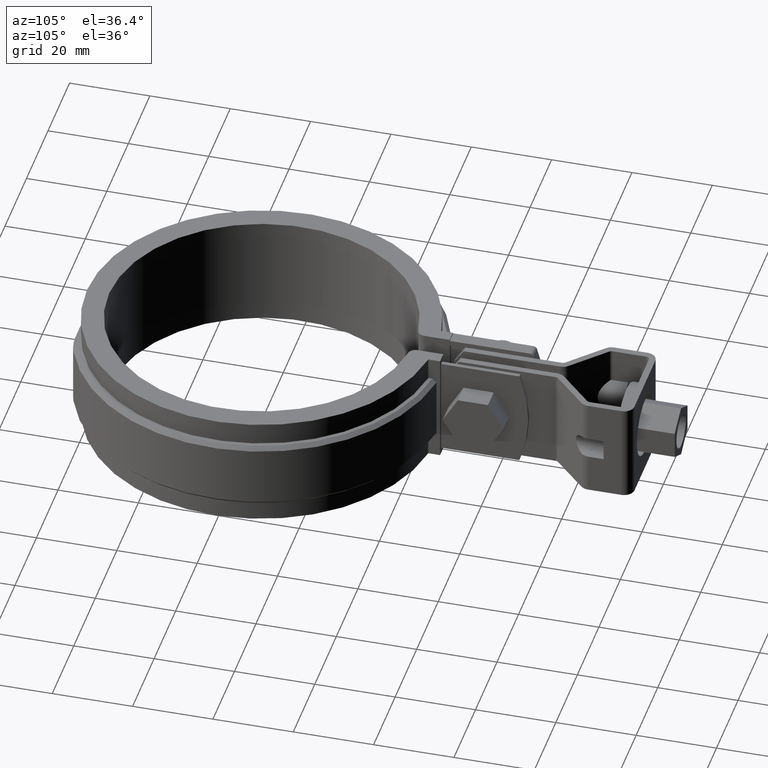
[diagram: clean part render]
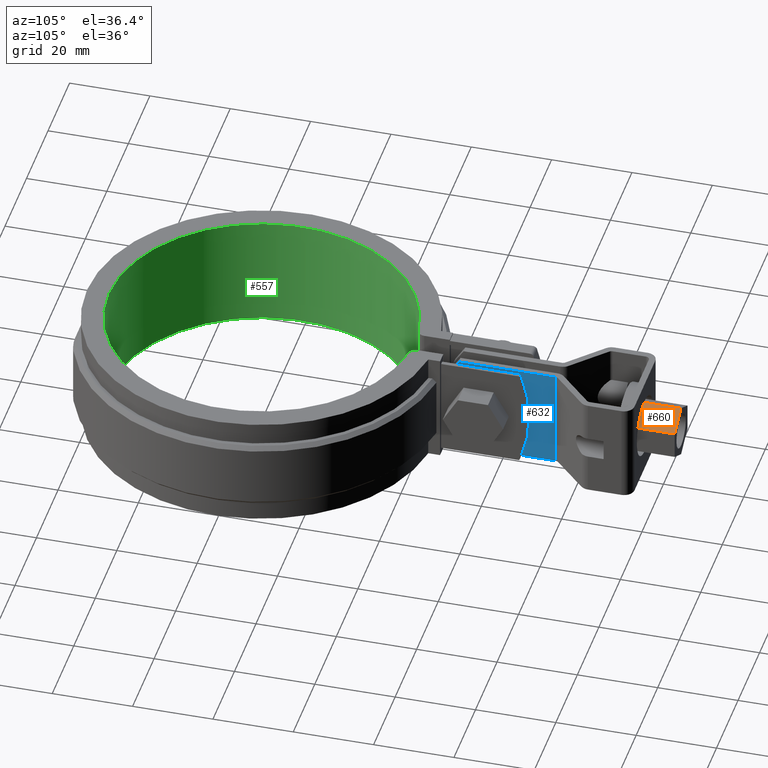
[diagram: same view with three faces highlighted in distinct colors, each labeled with its STEP entity id]
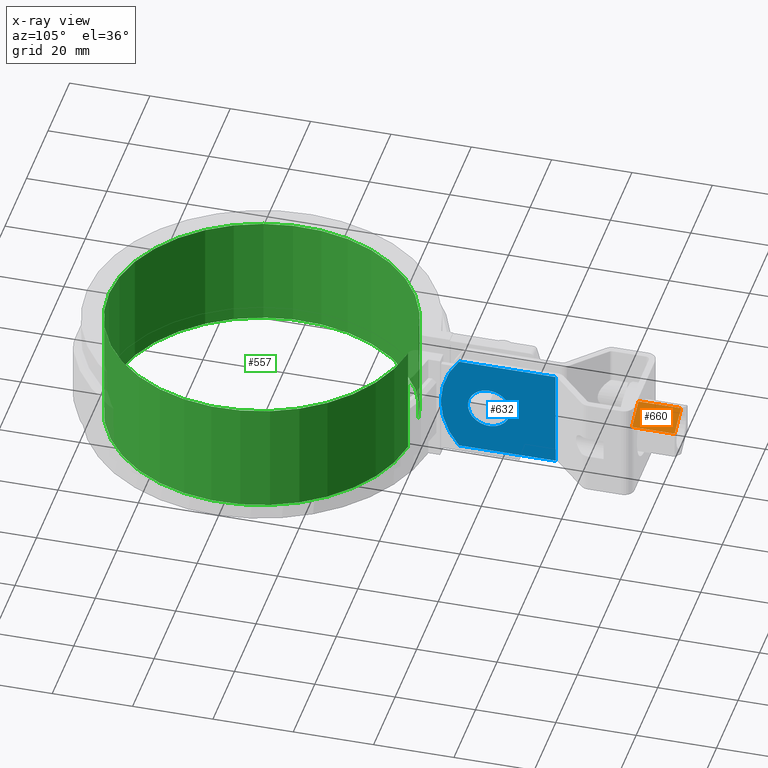
[diagram: x-ray of the same camera — body ghosted, the three highlighted faces saturated]
A machine part, auxiliary view with three faces highlighted in distinct colors.
The next image is the same camera in x-ray (body ghosted, the three faces saturated) — at least one of them is partly hidden behind the body in this view.
Their STEP definitions:

[orange] entity #660 — the highlighted planar face has unit normal (-0.5, 0, -0.866).
#660 = ADVANCED_FACE( '', ( #1242 ), #1243, .F. );
#1242 = FACE_OUTER_BOUND( '', #2550, .T. );
#1243 = PLANE( '', #2551 );
#2550 = EDGE_LOOP( '', ( #5985, #5986, #5987, #5988 ) );
#2551 = AXIS2_PLACEMENT_3D( '', #5989, #5990, #5991 );
#5985 = ORIENTED_EDGE( '', *, *, #7859, .T. );
#5986 = ORIENTED_EDGE( '', *, *, #7843, .F. );
#5987 = ORIENTED_EDGE( '', *, *, #7850, .F. );
#5988 = ORIENTED_EDGE( '', *, *, #7858, .T. );
#5989 = CARTESIAN_POINT( '', ( 3.05432216397076E-012, 104.395103745739, 6.87046820336078 ) );
#5990 = DIRECTION( '', ( -0.499999999999973, 2.60416379072543E-014, -0.866025403784454 ) );
#5991 = DIRECTION( '', ( -0.866025403784454, 2.89120260035850E-030, 0.499999999999973 ) );
#7843 = EDGE_CURVE( '', #9226, #9221, #9228, .T. );
#7850 = EDGE_CURVE( '', #9239, #9226, #9241, .T. );
#7858 = EDGE_CURVE( '', #9239, #9251, #9253, .T. );
#7859 = EDGE_CURVE( '', #9251, #9221, #9254, .T. );
#9221 = VERTEX_POINT( '', #13196 );
#9226 = VERTEX_POINT( '', #13203 );
#9228 = LINE( '', #13206, #13207 );
#9239 = VERTEX_POINT( '', #13221 );
#9241 = LINE( '', #13224, #13225 );
#9251 = VERTEX_POINT( '', #13241 );
#9253 = LINE( '', #13244, #13245 );
#9254 = LINE( '', #13246, #13247 );
#13196 = CARTESIAN_POINT( '', ( 5.95000000000313, 93.7951037457394, 3.43523410168238 ) );
#13203 = CARTESIAN_POINT( '', ( 5.95000000000316, 104.395103745739, 3.43523410168269 ) );
#13206 = CARTESIAN_POINT( '', ( 5.95000000000316, 104.395103745739, 3.43523410168269 ) );
#13207 = VECTOR( '', #14969, 1000.00000000000 );
#13221 = CARTESIAN_POINT( '', ( 3.04825063180485E-012, 104.395103745739, 6.87046820336078 ) );
#13224 = CARTESIAN_POINT( '', ( 3.05432216397076E-012, 104.395103745739, 6.87046820336078 ) );
#13225 = VECTOR( '', #14980, 1000.00000000000 );
#13241 = CARTESIAN_POINT( '', ( 3.01900223297217E-012, 93.7951037457393, 6.87046820336047 ) );
#13244 = CARTESIAN_POINT( '', ( 3.04825063180485E-012, 104.395103745739, 6.87046820336078 ) );
#13245 = VECTOR( '', #14988, 1000.00000000000 );
#13246 = CARTESIAN_POINT( '', ( 3.02507376513809E-012, 93.7951037457393, 6.87046820336047 ) );
#13247 = VECTOR( '', #14989, 1000.00000000000 );
#14969 = DIRECTION( '', ( -2.75928290874320E-015, -1.00000000000000, -2.84772205816504E-014 ) );
#14980 = DIRECTION( '', ( 0.866025403784454, 1.18490011956246E-014, -0.499999999999973 ) );
#14988 = DIRECTION( '', ( -2.75928290874320E-015, -1.00000000000000, -2.84772205816504E-014 ) );
#14989 = DIRECTION( '', ( 0.866025403784454, 1.18490011956246E-014, -0.499999999999973 ) );

[blue] entity #632 — the highlighted planar face has unit normal (1, -0, -0).
#632 = ADVANCED_FACE( '', ( #1179, #1180 ), #1181, .T. );
#1179 = FACE_OUTER_BOUND( '', #2487, .T. );
#1180 = FACE_BOUND( '', #2488, .T. );
#1181 = PLANE( '', #2489 );
#2487 = EDGE_LOOP( '', ( #5771, #5772, #5773, #5774 ) );
#2488 = EDGE_LOOP( '', ( #5775 ) );
#2489 = AXIS2_PLACEMENT_3D( '', #5776, #5777, #5778 );
#5771 = ORIENTED_EDGE( '', *, *, #7720, .T. );
#5772 = ORIENTED_EDGE( '', *, *, #7820, .F. );
#5773 = ORIENTED_EDGE( '', *, *, #7757, .F. );
#5774 = ORIENTED_EDGE( '', *, *, #7809, .F. );
#5775 = ORIENTED_EDGE( '', *, *, #7821, .F. );
#5776 = CARTESIAN_POINT( '', ( 3.00000000000355, 74.3707139191505, -12.4999999999965 ) );
#5777 = DIRECTION( '', ( 1.00000000000000, -2.65969893920034E-015, -8.14971484401562E-029 ) );
#5778 = DIRECTION( '', ( 0.000000000000000, -3.06414937566802E-014, 1.00000000000000 ) );
#7720 = EDGE_CURVE( '', #9026, #9024, #9027, .F. );
#7757 = EDGE_CURVE( '', #9097, #9099, #9100, .T. );
#7809 = EDGE_CURVE( '', #9026, #9097, #9178, .T. );
#7820 = EDGE_CURVE( '', #9099, #9024, #9195, .F. );
#7821 = EDGE_CURVE( '', #9196, #9196, #9197, .T. );
#9024 = VERTEX_POINT( '', #12874 );
#9026 = VERTEX_POINT( '', #12877 );
#9027 = LINE( '', #12878, #12879 );
#9097 = VERTEX_POINT( '', #12969 );
#9099 = VERTEX_POINT( '', #12971 );
#9100 = LINE( '', #12972, #12973 );
#9178 = LINE( '', #13113, #13114 );
#9195 = CIRCLE( '', #13152, 19.6111110000000 );
#9196 = VERTEX_POINT( '', #13153 );
#9197 = CIRCLE( '', #13154, 5.25000000000000 );
#12874 = CARTESIAN_POINT( '', ( 3.00000000000348, 49.8951037788275, 12.5000000000028 ) );
#12877 = CARTESIAN_POINT( '', ( 3.00000000000317, 73.9492501502597, 12.5000000000035 ) );
#12878 = CARTESIAN_POINT( '', ( 3.00000000000355, 74.3707139191498, 12.5000000000035 ) );
#12879 = VECTOR( '', #14774, 1000.00000000000 );
#12969 = CARTESIAN_POINT( '', ( 3.00000000000355, 73.9492501502604, -12.4999999999965 ) );
#12971 = CARTESIAN_POINT( '', ( 3.00000000000348, 49.8951037788283, -12.4999999999972 ) );
#12972 = CARTESIAN_POINT( '', ( 3.00000000000360, 92.7951037457399, -12.4999999999960 ) );
#12973 = VECTOR( '', #14843, 1000.00000000000 );
#13113 = CARTESIAN_POINT( '', ( 3.00000000000355, 73.9492501502604, -12.4999999999965 ) );
#13114 = VECTOR( '', #14920, 1000.00000000000 );
#13152 = AXIS2_PLACEMENT_3D( '', #14935, #14936, #14937 );
#13153 = CARTESIAN_POINT( '', ( 3.00000000000352, 62.6451037457397, 2.99951424204409E-012 ) );
#13154 = AXIS2_PLACEMENT_3D( '', #14938, #14939, #14940 );
#14774 = DIRECTION( '', ( 2.65969893920034E-015, 1.00000000000000, 2.84772205816504E-014 ) );
#14843 = DIRECTION( '', ( -2.65969893920034E-015, -1.00000000000000, -2.84772205816504E-014 ) );
#14920 = DIRECTION( '', ( 3.06414937566803E-014, 2.85369574741963E-014, -1.00000000000000 ) );
#14935 = CARTESIAN_POINT( '', ( 3.00000000000352, 65.0062147457397, 3.24507437288489E-012 ) );
#14936 = DIRECTION( '', ( 1.00000000000000, -2.65969893920034E-015, -8.14971484401562E-029 ) );
#14937 = DIRECTION( '', ( 2.65969893920034E-015, 1.00000000000000, 0.000000000000000 ) );
#14938 = CARTESIAN_POINT( '', ( 3.00000000000350, 57.3951037457397, 2.99951424204409E-012 ) );
#14939 = DIRECTION( '', ( 1.00000000000000, -2.65969893920034E-015, -8.14971484401562E-029 ) );
#14940 = DIRECTION( '', ( 2.65969893920034E-015, 1.00000000000000, 0.000000000000000 ) );

[green] entity #557 — the highlighted cylindrical surface (partial cylindrical patch) has radius 38 mm, axis along (0, 0, 1).
#557 = ADVANCED_FACE( '', ( #1024 ), #1025, .F. );
#1024 = FACE_OUTER_BOUND( '', #2122, .T. );
#1025 = CYLINDRICAL_SURFACE( '', #2123, 38.0000000000000 );
#2122 = EDGE_LOOP( '', ( #5047, #5048, #5049, #5050 ) );
#2123 = AXIS2_PLACEMENT_3D( '', #5051, #5052, #5053 );
#5047 = ORIENTED_EDGE( '', *, *, #7634, .T. );
#5048 = ORIENTED_EDGE( '', *, *, #7518, .T. );
#5049 = ORIENTED_EDGE( '', *, *, #7622, .F. );
#5050 = ORIENTED_EDGE( '', *, *, #7635, .T. );
#5051 = CARTESIAN_POINT( '', ( 0.000000000000000, 0.000000000000000, -14.0000000000000 ) );
#5052 = DIRECTION( '', ( 0.000000000000000, 0.000000000000000, 1.00000000000000 ) );
#5053 = DIRECTION( '', ( 1.00000000000000, -6.07153216591882E-017, 0.000000000000000 ) );
#7518 = EDGE_CURVE( '', #8695, #8699, #8701, .T. );
#7622 = EDGE_CURVE( '', #8878, #8699, #8880, .T. );
#7634 = EDGE_CURVE( '', #8897, #8695, #8898, .T. );
#7635 = EDGE_CURVE( '', #8878, #8897, #8899, .T. );
#8695 = VERTEX_POINT( '', #12077 );
#8699 = VERTEX_POINT( '', #12082 );
#8701 = LINE( '', #12084, #12085 );
#8878 = VERTEX_POINT( '', #12617 );
#8880 = CIRCLE( '', #12619, 38.0000000000000 );
#8897 = VERTEX_POINT( '', #12659 );
#8898 = CIRCLE( '', #12660, 38.0000000000000 );
#8899 = LINE( '', #12661, #12662 );
#12077 = CARTESIAN_POINT( '', ( -4.75000000000002, 37.7019561826704, -14.0000000000000 ) );
#12082 = CARTESIAN_POINT( '', ( -4.75000000000002, 37.7019561826704, 14.0000000000000 ) );
#12084 = CARTESIAN_POINT( '', ( -4.75000000000002, 37.7019561826704, -14.0000000000000 ) );
#12085 = VECTOR( '', #14529, 1000.00000000000 );
#12617 = CARTESIAN_POINT( '', ( 4.75000000000000, 37.7019561826704, 14.0000000000000 ) );
#12619 = AXIS2_PLACEMENT_3D( '', #14635, #14636, #14637 );
#12659 = CARTESIAN_POINT( '', ( 4.75000000000000, 37.7019561826704, -14.0000000000000 ) );
#12660 = AXIS2_PLACEMENT_3D( '', #14646, #14647, #14648 );
#12661 = CARTESIAN_POINT( '', ( 4.75000000000000, 37.7019561826704, -14.0000000000000 ) );
#12662 = VECTOR( '', #14649, 1000.00000000000 );
#14529 = DIRECTION( '', ( 0.000000000000000, 0.000000000000000, 1.00000000000000 ) );
#14635 = CARTESIAN_POINT( '', ( 0.000000000000000, 0.000000000000000, 14.0000000000000 ) );
#14636 = DIRECTION( '', ( 0.000000000000000, 0.000000000000000, -1.00000000000000 ) );
#14637 = DIRECTION( '', ( -1.00000000000000, 0.000000000000000, 0.000000000000000 ) );
#14646 = CARTESIAN_POINT( '', ( 0.000000000000000, 0.000000000000000, -14.0000000000000 ) );
#14647 = DIRECTION( '', ( 0.000000000000000, 0.000000000000000, -1.00000000000000 ) );
#14648 = DIRECTION( '', ( -1.00000000000000, 0.000000000000000, 0.000000000000000 ) );
#14649 = DIRECTION( '', ( 0.000000000000000, 0.000000000000000, -1.00000000000000 ) );